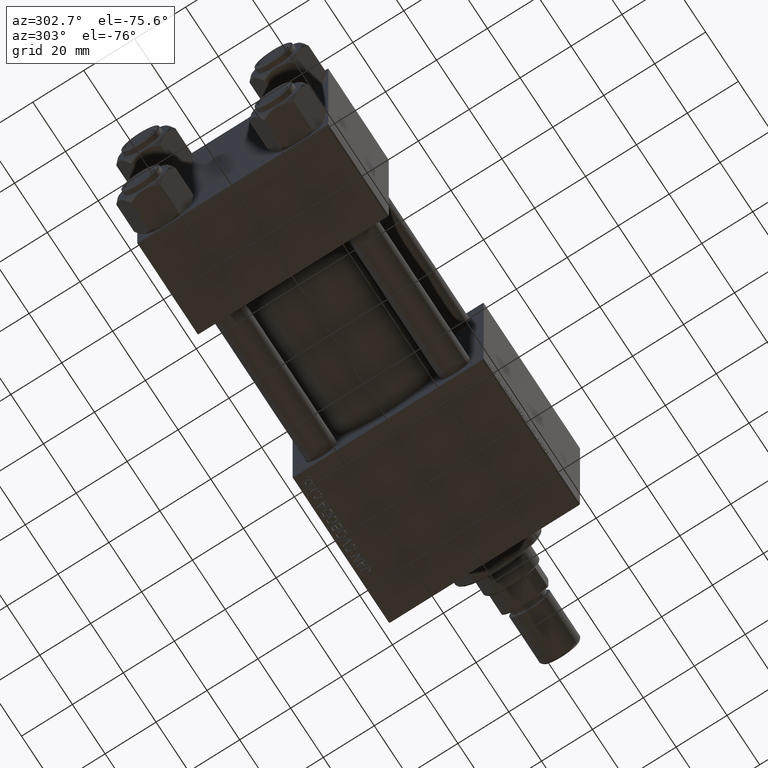
[diagram: clean part render]
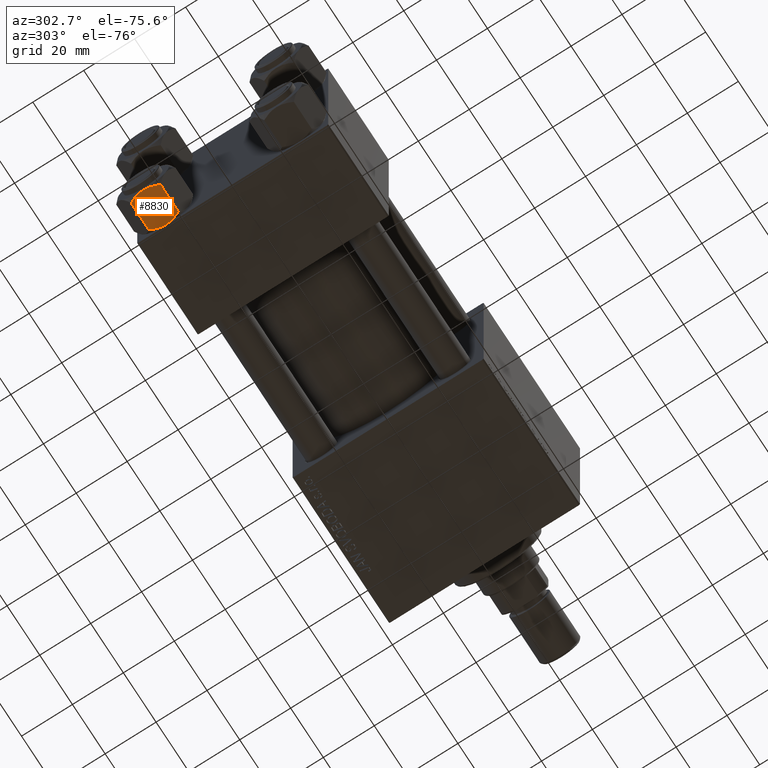
[diagram: same view with one face highlighted and labeled with its STEP entity id]
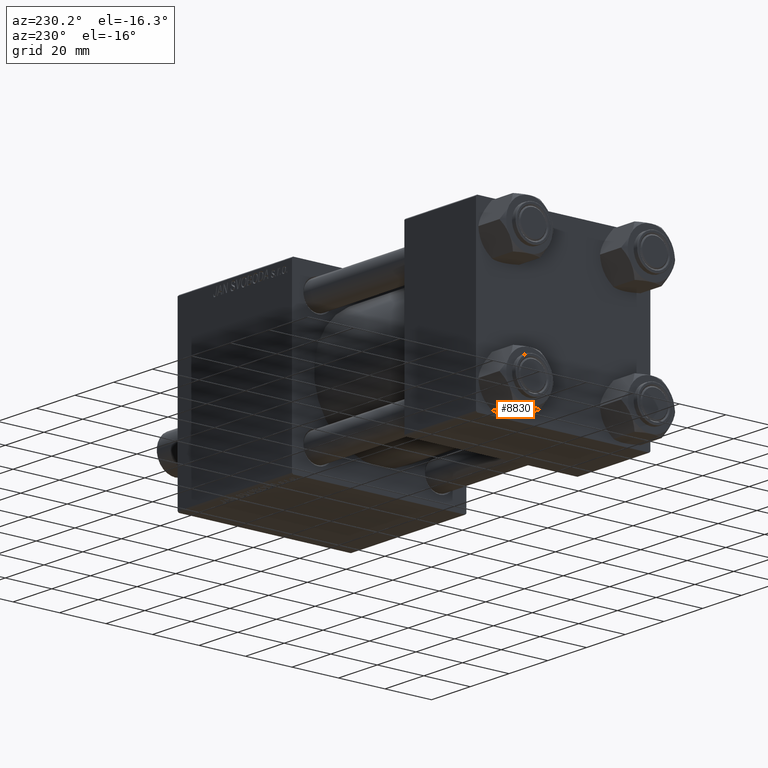
[diagram: same view with one face highlighted and labeled with its STEP entity id]
A machine part, auxiliary view. The second image highlights one B-rep face of the part: STEP entity #8830.
A second angle (auxiliary view) of the same face is appended — the face is thin or edge-on in the first view.
In plain terms, the highlighted planar face has unit normal (0, -0, 1).
Its self-contained STEP definition (entity closure, byte-faithful):
#657 = CARTESIAN_POINT ( 'NONE',  ( -8.715000000000003411, 5.031607595987592774, 0.000000000000000000 ) ) ;
#2176 = CARTESIAN_POINT ( 'NONE',  ( -7.700834831386344170, 6.788193195293096949, -0.1903979688073401122 ) ) ;
#3173 = AXIS2_PLACEMENT_3D ( 'NONE', #46620, #43531, #27654 ) ;
#3820 = CARTESIAN_POINT ( 'NONE',  ( -7.713000053756302599, 6.767122412062954062, -13.84547602999601601 ) ) ;
#3993 = CARTESIAN_POINT ( 'NONE',  ( -11.61999999999999922, 6.288644352490894150E-15, -14.00000000000000000 ) ) ;
#4196 = CARTESIAN_POINT ( 'NONE',  ( -9.220295946303428636, 4.156409344131455796, 3.796401669593772542E-15 ) ) ;
#4385 = B_SPLINE_CURVE_WITH_KNOTS ( 'NONE', 3,
 ( #15738, #4196, #43114, #16484, #4691, #35174 ),
 .UNSPECIFIED., .F., .F.,
 ( 4, 2, 4 ),
 ( 0.006022845781655589842, 0.009013049135303633289, 0.01200325248895167674 ),
 .UNSPECIFIED. ) ;
#4691 = CARTESIAN_POINT ( 'NONE',  ( -11.16498164529022219, 0.7881149087337359083, -1.101766453314949379 ) ) ;
#4766 = CARTESIAN_POINT ( 'NONE',  ( -5.809999999999997833, 10.06321519197518022, -1.556784808024814115 ) ) ;
#5945 = B_SPLINE_CURVE_WITH_KNOTS ( 'NONE', 3,
 ( #4766, #20395, #35999, #16560, #2176, #9619, #44429, #24981 ),
 .UNSPECIFIED., .F., .F.,
 ( 4, 2, 2, 4 ),
 ( 2.544312114902182352E-07, 0.003011550106433540791, 0.004517197944044565316, 0.006022845781655589842 ),
 .UNSPECIFIED. ) ;
#6617 = ORIENTED_EDGE ( 'NONE', *, *, #31184, .F. ) ;
#7912 = CARTESIAN_POINT ( 'NONE',  ( -6.265018354709776638, 9.275100283241455301, -12.89823354668505218 ) ) ;
#8830 = ADVANCED_FACE ( 'NONE', ( #12061 ), #19751, .F. ) ;
#9619 = CARTESIAN_POINT ( 'NONE',  ( -8.202333004087897450, 5.919572880271055659, -0.03994118060690620559 ) ) ;
#9899 = CARTESIAN_POINT ( 'NONE',  ( -9.974696630283190757, 2.849749030213795109, -13.69973261901325934 ) ) ;
#12061 = FACE_OUTER_BOUND ( 'NONE', #46855, .T. ) ;
#15095 = CARTESIAN_POINT ( 'NONE',  ( -6.733375043383492020, 8.463882702393842550, -13.28854452935654962 ) ) ;
#15274 = CARTESIAN_POINT ( 'NONE',  ( -5.809999999999997833, 10.06321519197518022, -14.00000000000000000 ) ) ;
#15738 = CARTESIAN_POINT ( 'NONE',  ( -8.715000000000003411, 5.031607595987592774, 0.000000000000000000 ) ) ;
#16484 = CARTESIAN_POINT ( 'NONE',  ( -10.69662495661650148, 1.599332489581337668, -0.7114554706434472742 ) ) ;
#16560 = CARTESIAN_POINT ( 'NONE',  ( -7.455303369716805406, 7.213466161761384221, -0.3002673809867362764 ) ) ;
#16563 = EDGE_CURVE ( 'NONE', #48040, #19006, #4385, .T. ) ;
#17582 = CARTESIAN_POINT ( 'NONE',  ( -8.969430103550378064, 4.590921729663314466, -14.00000000000000178 ) ) ;
#18054 = ORIENTED_EDGE ( 'NONE', *, *, #21125, .F. ) ;
#19006 = VERTEX_POINT ( 'NONE', #25403 ) ;
#19751 = PLANE ( 'NONE',  #3173 ) ;
#19795 = VECTOR ( 'NONE', #38818, 1000.000000000000000 ) ;
#20395 = CARTESIAN_POINT ( 'NONE',  ( -6.265545725125282850, 9.274186850887385702, -1.101239082899533539 ) ) ;
#21125 = EDGE_CURVE ( 'NONE', #49056, #36205, #38040, .T. ) ;
#21159 = CARTESIAN_POINT ( 'NONE',  ( -5.809999999999997833, 10.06321519197518022, -12.44321519197518455 ) ) ;
#22187 = CARTESIAN_POINT ( 'NONE',  ( -11.61999999999999922, 6.270720075510426383E-15, -12.44321519197518811 ) ) ;
#22477 = ORIENTED_EDGE ( 'NONE', *, *, #26363, .T. ) ;
#22923 = VERTEX_POINT ( 'NONE', #49457 ) ;
#24981 = CARTESIAN_POINT ( 'NONE',  ( -8.715000000000003411, 5.031607595987592774, 0.000000000000000000 ) ) ;
#25259 = CARTESIAN_POINT ( 'NONE',  ( -9.227666995912096937, 4.143642311704127223, -13.96005881939308857 ) ) ;
#25403 = CARTESIAN_POINT ( 'NONE',  ( -11.61999999999999922, 6.270720075409452187E-15, -1.556784808024810562 ) ) ;
#25778 = CARTESIAN_POINT ( 'NONE',  ( -5.809999999999997833, 10.06321519197518022, -1.556784808024814115 ) ) ;
#26363 = EDGE_CURVE ( 'NONE', #37210, #19006, #39330, .T. ) ;
#26865 = ORIENTED_EDGE ( 'NONE', *, *, #48153, .F. ) ;
#27654 = DIRECTION ( 'NONE',  ( 0.5000000000000001110, 0.8660254037844384856, 0.000000000000000000 ) ) ;
#27673 = ORIENTED_EDGE ( 'NONE', *, *, #42555, .F. ) ;
#29083 = CARTESIAN_POINT ( 'NONE',  ( -11.16445427487471598, 0.7890283410878030645, -12.89876091710047312 ) ) ;
#29540 = B_SPLINE_CURVE_WITH_KNOTS ( 'NONE', 3,
 ( #40085, #46322, #3820, #15095, #7912, #31217 ),
 .UNSPECIFIED., .F., .F.,
 ( 4, 2, 4 ),
 ( 0.006022845781655582903, 0.009013049135303629819, 0.01200325248895167847 ),
 .UNSPECIFIED. ) ;
#30253 = B_SPLINE_CURVE_WITH_KNOTS ( 'NONE', 3,
 ( #22187, #29083, #45459, #9899, #37787, #25259, #17582, #36774 ),
 .UNSPECIFIED., .F., .F.,
 ( 4, 2, 2, 4 ),
 ( 2.544312114905218436E-07, 0.003011550106433537755, 0.004517197944044560980, 0.006022845781655582903 ),
 .UNSPECIFIED. ) ;
#30884 = DIRECTION ( 'NONE',  ( -0.000000000000000000, -0.000000000000000000, 1.000000000000000000 ) ) ;
#31184 = EDGE_CURVE ( 'NONE', #37210, #22923, #30253, .T. ) ;
#31217 = CARTESIAN_POINT ( 'NONE',  ( -5.809999999999997833, 10.06321519197518022, -12.44321519197518455 ) ) ;
#35174 = CARTESIAN_POINT ( 'NONE',  ( -11.61999999999999922, 6.270720075409452187E-15, -1.556784808024810562 ) ) ;
#35999 = CARTESIAN_POINT ( 'NONE',  ( -6.731401448974986934, 8.467301068182916168, -0.7141438259524646170 ) ) ;
#36205 = VERTEX_POINT ( 'NONE', #25778 ) ;
#36774 = CARTESIAN_POINT ( 'NONE',  ( -8.715000000000001634, 5.031607595987591885, -14.00000000000000000 ) ) ;
#37210 = VERTEX_POINT ( 'NONE', #46980 ) ;
#37254 = ORIENTED_EDGE ( 'NONE', *, *, #16563, .F. ) ;
#37787 = CARTESIAN_POINT ( 'NONE',  ( -9.729165168613649328, 3.275021996682086822, -13.80960203119265906 ) ) ;
#38040 = LINE ( 'NONE', #15274, #41871 ) ;
#38818 = DIRECTION ( 'NONE',  ( -0.000000000000000000, -0.000000000000000000, 1.000000000000000000 ) ) ;
#39330 = LINE ( 'NONE', #3993, #19795 ) ;
#40085 = CARTESIAN_POINT ( 'NONE',  ( -8.715000000000001634, 5.031607595987591885, -14.00000000000000000 ) ) ;
#41871 = VECTOR ( 'NONE', #30884, 1000.000000000000000 ) ;
#42555 = EDGE_CURVE ( 'NONE', #22923, #49056, #29540, .T. ) ;
#43114 = CARTESIAN_POINT ( 'NONE',  ( -9.716999946243694453, 3.296092779912229265, -0.1545239700039824915 ) ) ;
#43531 = DIRECTION ( 'NONE',  ( 0.8660254037844385966, -0.5000000000000002220, 0.000000000000000000 ) ) ;
#44429 = CARTESIAN_POINT ( 'NONE',  ( -8.460569896449618099, 5.472293462311865753, 3.939644352451667145E-15 ) ) ;
#45459 = CARTESIAN_POINT ( 'NONE',  ( -10.69859855102501101, 1.595914123792268491, -13.28585617404753627 ) ) ;
#46322 = CARTESIAN_POINT ( 'NONE',  ( -8.209704053696567527, 5.906805847843725310, -14.00000000000000533 ) ) ;
#46620 = CARTESIAN_POINT ( 'NONE',  ( -11.61999999999999922, 6.288644352490894150E-15, -14.00000000000000000 ) ) ;
#46855 = EDGE_LOOP ( 'NONE', ( #6617, #22477, #37254, #26865, #18054, #27673 ) ) ;
#46980 = CARTESIAN_POINT ( 'NONE',  ( -11.61999999999999922, 6.270720075510426383E-15, -12.44321519197518811 ) ) ;
#48040 = VERTEX_POINT ( 'NONE', #657 ) ;
#48153 = EDGE_CURVE ( 'NONE', #36205, #48040, #5945, .T. ) ;
#49056 = VERTEX_POINT ( 'NONE', #21159 ) ;
#49457 = CARTESIAN_POINT ( 'NONE',  ( -8.715000000000001634, 5.031607595987591885, -14.00000000000000000 ) ) ;